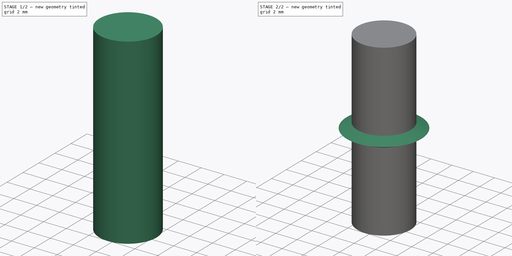
[diagram: build sequence overview — one tinted view per stage of 2, left to right]
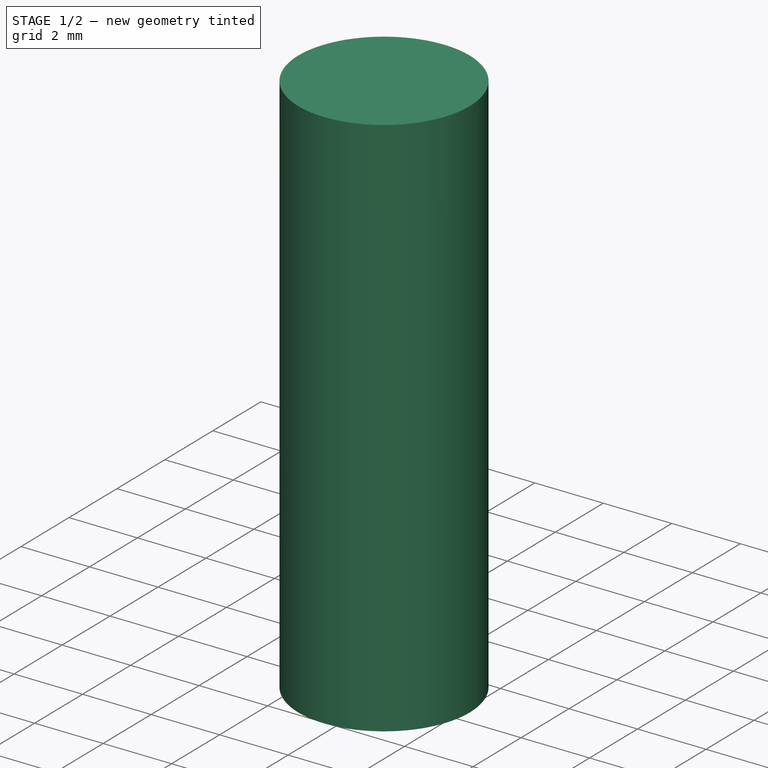
[diagram: stage 1 of 2 — iso view after this stage's code; geometry added in this stage tinted green]
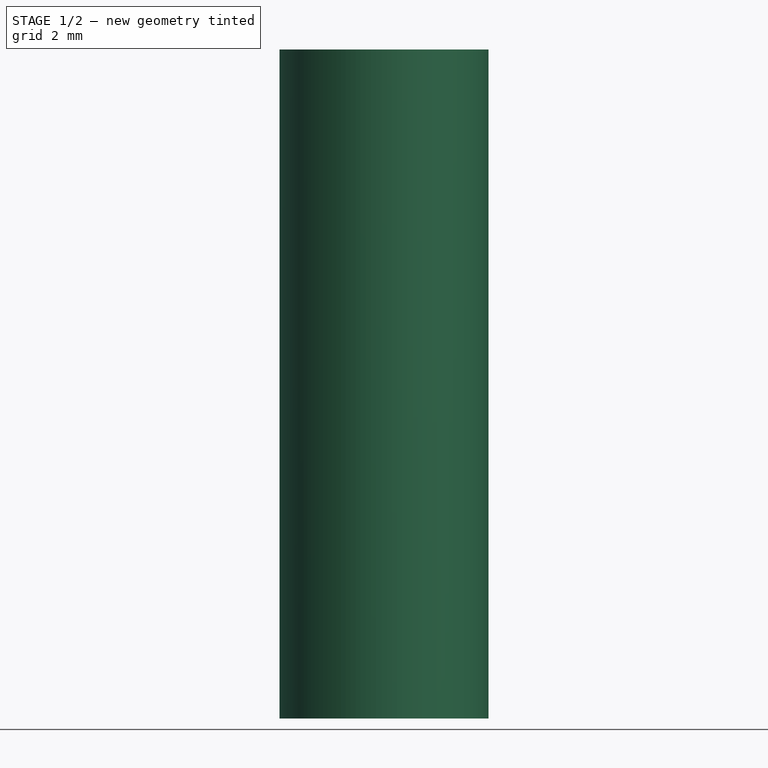
[diagram: stage 1 of 2 — front view after this stage's code; geometry added in this stage tinted green]
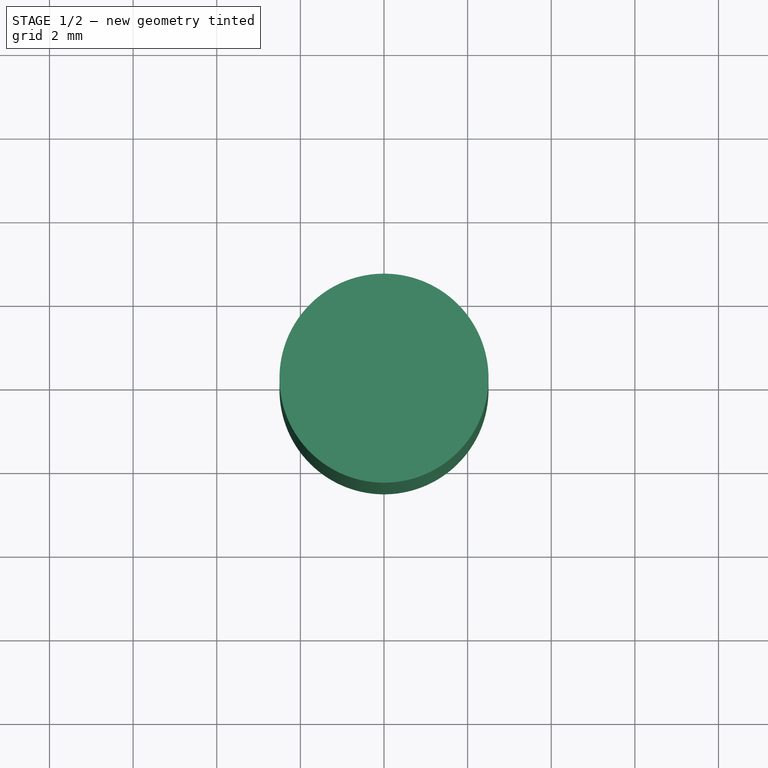
[diagram: stage 1 of 2 — top view after this stage's code; geometry added in this stage tinted green]
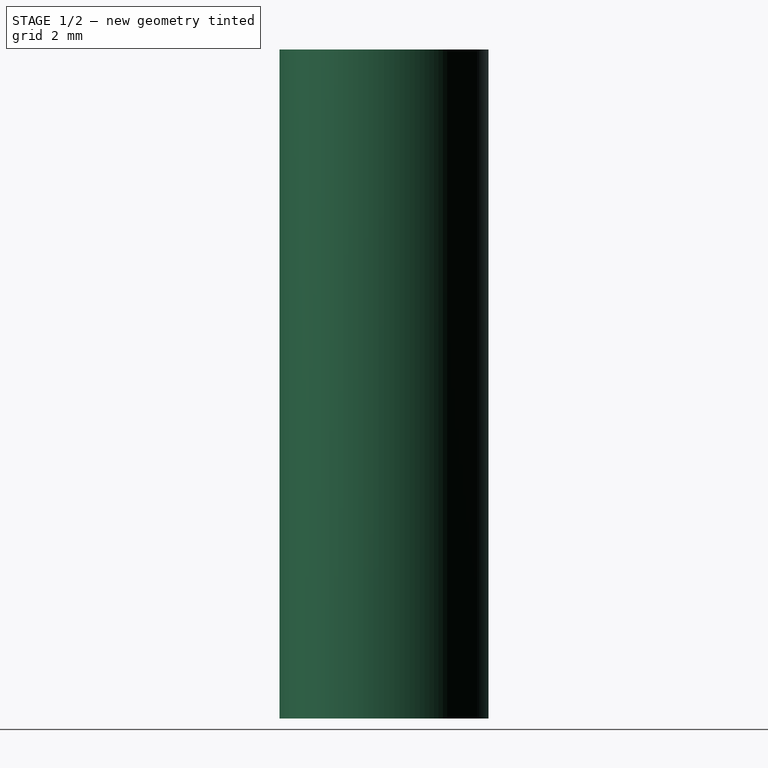
[diagram: stage 1 of 2 — right view after this stage's code; geometry added in this stage tinted green]
FCSTD DOCUMENT  (FreeCAD 1.1R20260325 (Git shallow))
Label: Shelf_Pin_5_x_16
License: All rights reserved
LicenseURL: http://en.wikipedia.org/wiki/All_rights_reserved
objects: App::LinkGroup×2, App::Point×2, Sketcher::SketchObject×1, PartDesign::Revolution×1, PartDesign::Body×1, Part::Cylinder×1, App::Part×1
note: 7 computed .brp shape members not serialized (recipe doc carries the construction recipe); baked Part::Feature solids carry a one-line shape summary decoded from their .brp

FEATURE [PartDesign::Body] Body  label="Body, Shelf Pin"
  AllowCompound = true
  Group = -> [Sketch,Revolution]
  Origin = -> Origin001
  Tip = -> Revolution
FEATURE [Part::Cylinder] Cylinder  label="Shelf Pin, Size, Pattern"
  Angle = 360
  AttacherType = Attacher::AttachEngine3D
  FirstAngle = 0
  Height = 16
  Radius = 2.5
  SecondAngle = 0
FEATURE [App::Part] Part  label="Part, Shelf Pin"
  Group = -> [Body,Cylinder]
  Origin = -> Origin
FEATURE [App::LinkGroup] LinkGroup  label="Shelf Pin 5 x 16 mm, link this"
  ElementList = -> [Part]
  LinkMode = 0
FEATURE [App::LinkGroup] LinkGroup001  label="Shelf Pin 5 x 16 mm, hide this"
  ElementList = -> [LinkGroup]
  LinkMode = 0
FEATURE [App::Point] Origin002  label="Origin"
  Role = Origin
FEATURE [App::Point] Origin003  label="Origin"
  Role = Origin
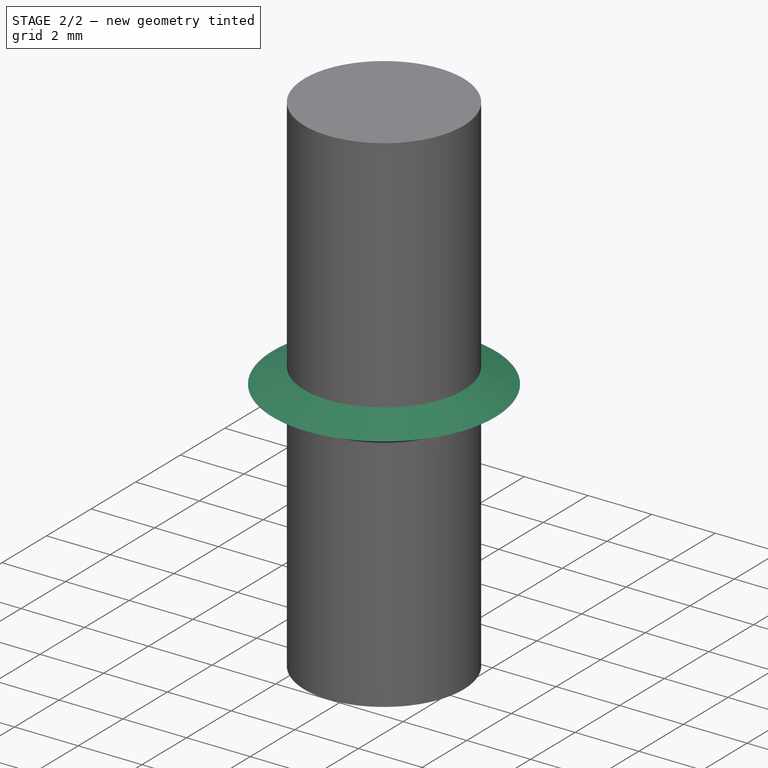
[diagram: stage 2 of 2 — iso view after this stage's code; geometry added in this stage tinted green]
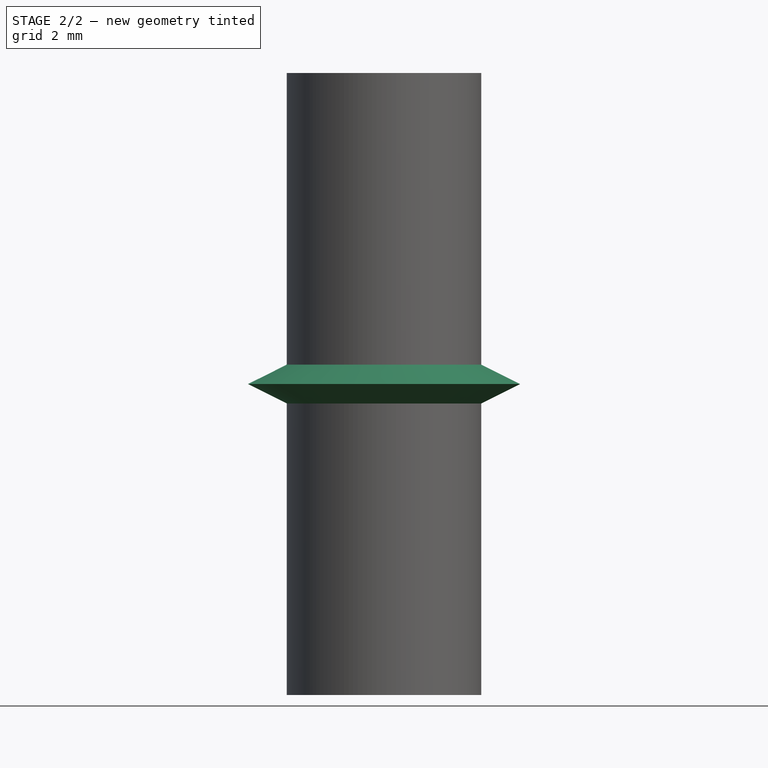
[diagram: stage 2 of 2 — front view after this stage's code; geometry added in this stage tinted green]
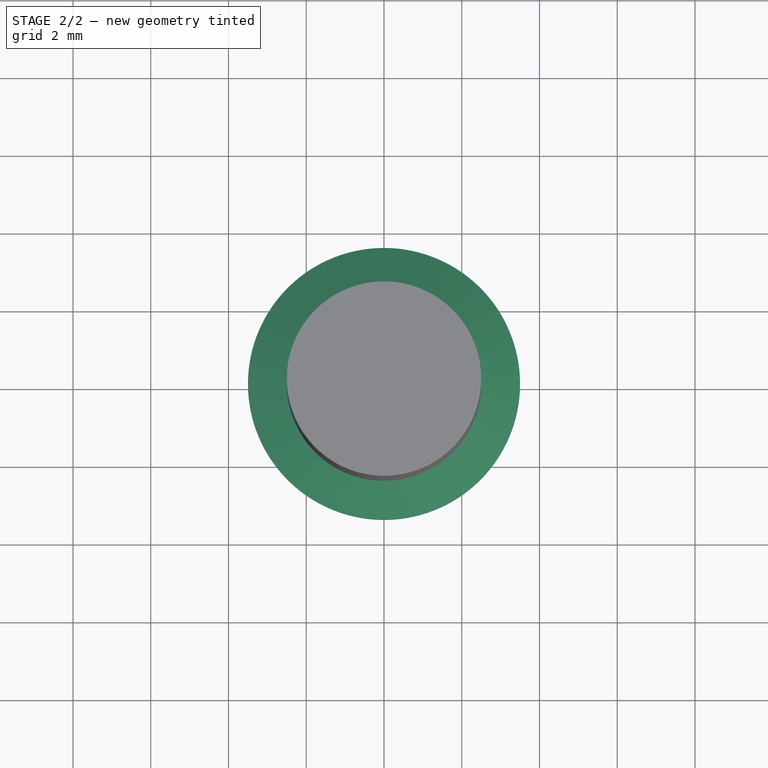
[diagram: stage 2 of 2 — top view after this stage's code; geometry added in this stage tinted green]
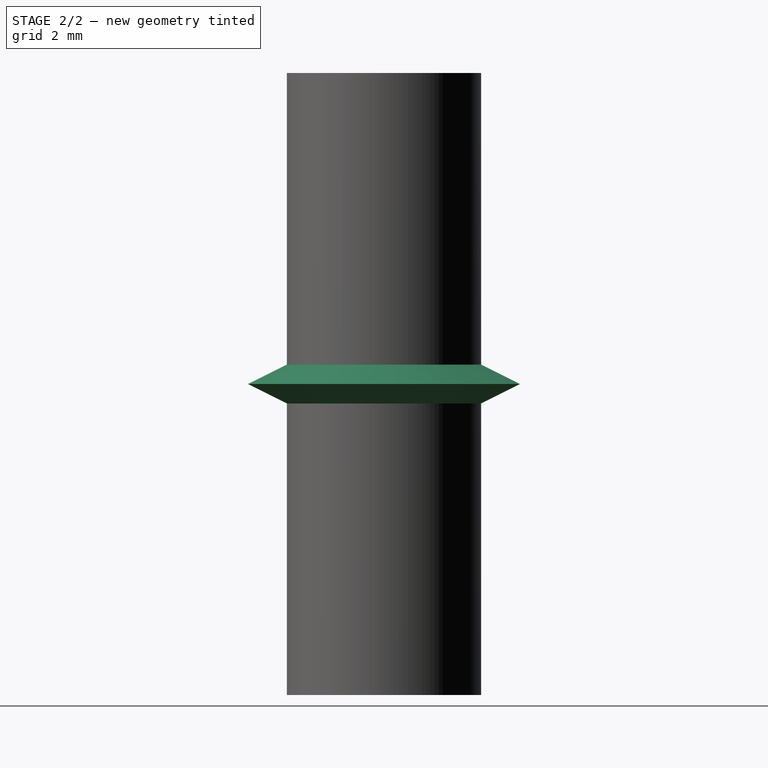
[diagram: stage 2 of 2 — right view after this stage's code; geometry added in this stage tinted green]
FEATURE [Sketcher::SketchObject] Sketch  label="Pattern, Shelf Pin"
  ArcFitTolerance = 0
  AttachmentSupport = -> [XZ_Plane001]
  ExternalTypes = [0]
  FullyConstrained = true
  MakeInternals = false
  MapMode = 5
  Placement = pos=(0,0,0) rot=(1,0,0;1.5708rad)
  _ExternalGeoVersion = 0
  sketch-geometry (9):
    g0: LineSegment StartX=0 StartY=0 StartZ=0 EndX=1.9 EndY=0 EndZ=0
    g1: LineSegment StartX=1.9 StartY=0 StartZ=0 EndX=2.5 EndY=1 EndZ=0
    g2: LineSegment StartX=2.5 StartY=1 StartZ=0 EndX=2.5 EndY=7.5 EndZ=0
    g3: LineSegment StartX=2.5 StartY=7.5 StartZ=0 EndX=3.5 EndY=8 EndZ=0
    g4: LineSegment StartX=3.5 StartY=8 StartZ=0 EndX=2.5 EndY=8.5 EndZ=0
    g5: LineSegment StartX=1.9 StartY=16 StartZ=0 EndX=0 EndY=16 EndZ=0
    g6: LineSegment StartX=0 StartY=16 StartZ=0 EndX=0 EndY=0 EndZ=0
    g7: LineSegment StartX=1.9 StartY=16 StartZ=0 EndX=2.5 EndY=15 EndZ=0
    g8: LineSegment StartX=2.5 StartY=15 StartZ=0 EndX=2.5 EndY=8.5 EndZ=0
  constraints (26):
    c: Coincident(g-1,g0)
    c: Coincident(g0,g1)
    c: Coincident(g1,g2)
    c: Coincident(g2,g3)
    c: Coincident(g3,g4)
    c: Coincident(g5,g6)
    c: Coincident(g6,g0)
    c: Vertical(g6)
    c: DistanceY(g0,g5) = 16
    c: Horizontal(g0)
    c: DistanceX(g0,g0) = 1.9
    c: DistanceY(g0,g1) = 1
    c: DistanceX(g0,g1) = 2.5
    c: Vertical(g2)
    c: Vertical(g2,g4)
    c: Equal(g4,g3)
    c: DistanceX(g2,g3) = 1
    c: DistanceY(g2,g4) = 1
    c: Equal(g5,g0)
    c: Horizontal(g5)
    c: Coincident(g5,g7)
    c: Coincident(g7,g8)
    c: Coincident(g8,g4)
    c: Vertical(g8)
    c: Equal(g7,g1)
    c: Equal(g8,g2)
FEATURE [PartDesign::Revolution] Revolution  label="Shelf Pin"
  Angle = 360
  Angle2 = 0
  Axis = (0,2e-16,1)
  Base = (0,0,0)
  FuseOrder = 0
  Placement = pos=(0,0,0) rot=(1,0,0;1.5708rad)
  Profile = -> Sketch
  ReferenceAxis = -> Sketch [V_Axis]
  Reversed = true
  Suppressed = false
  Type = 0
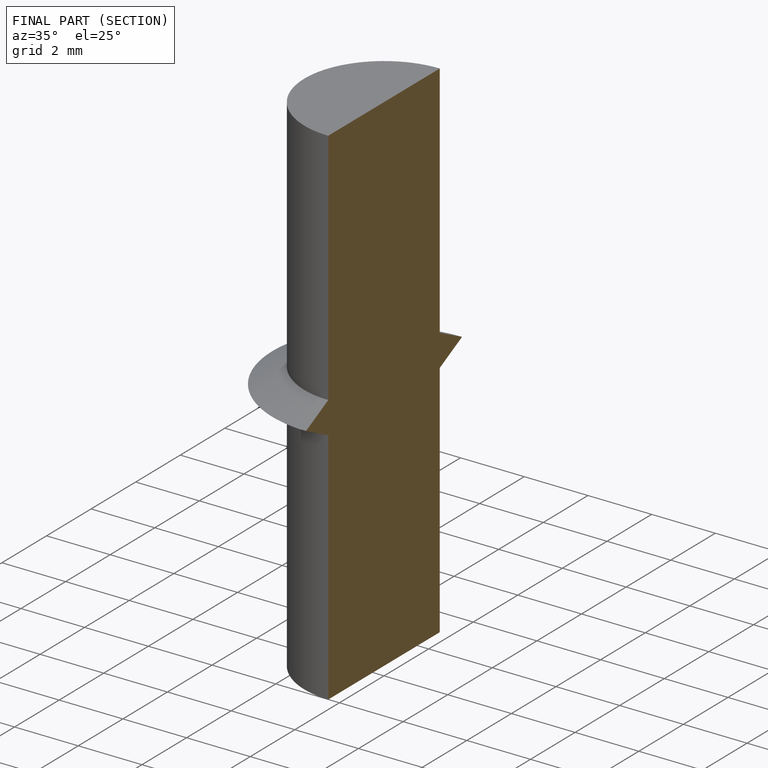
[diagram: finished part — half-section view (interior)]
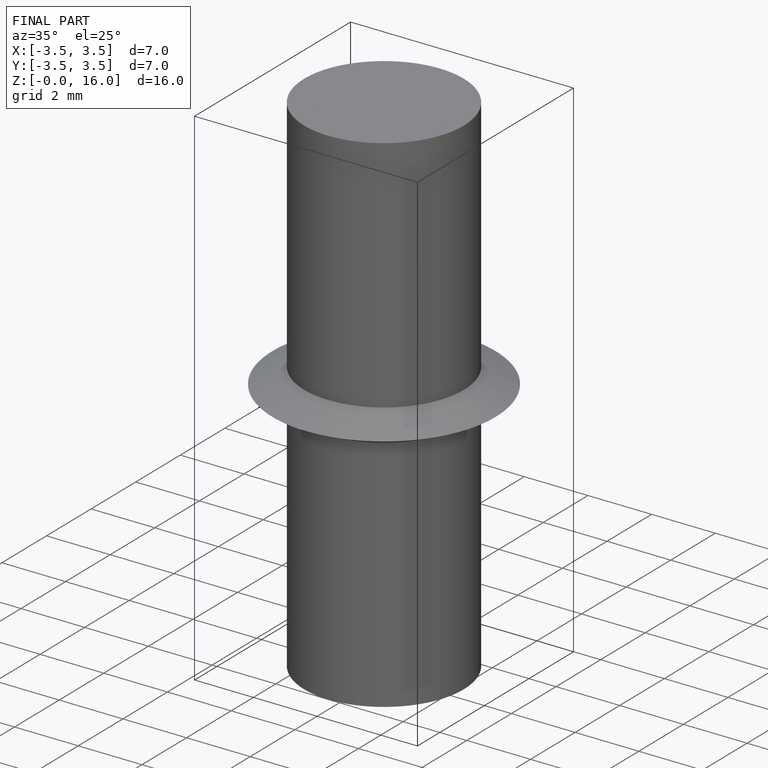
[diagram: finished part — iso view with bounding-box wireframe]
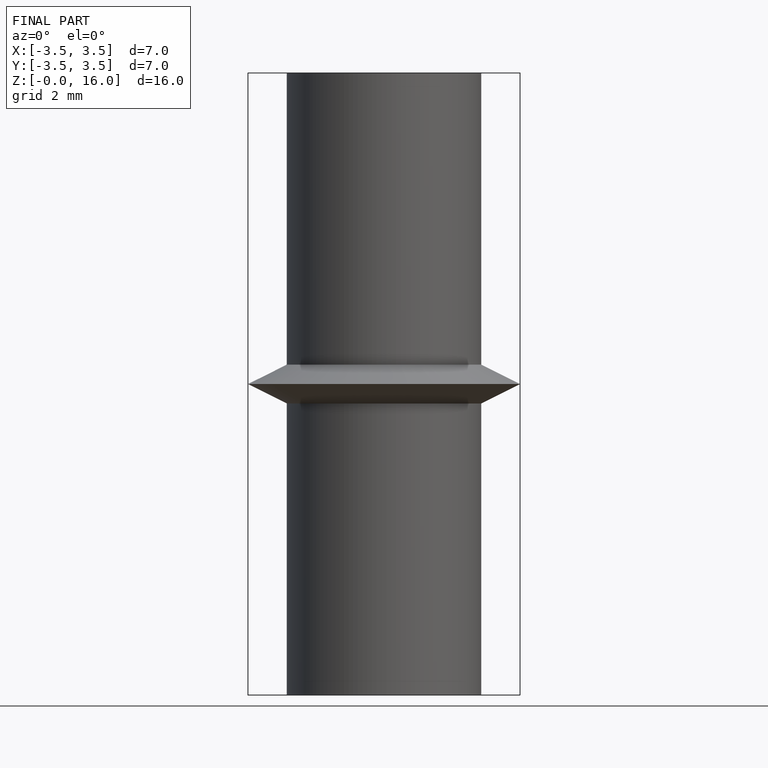
[diagram: finished part — front view with bounding-box wireframe]
